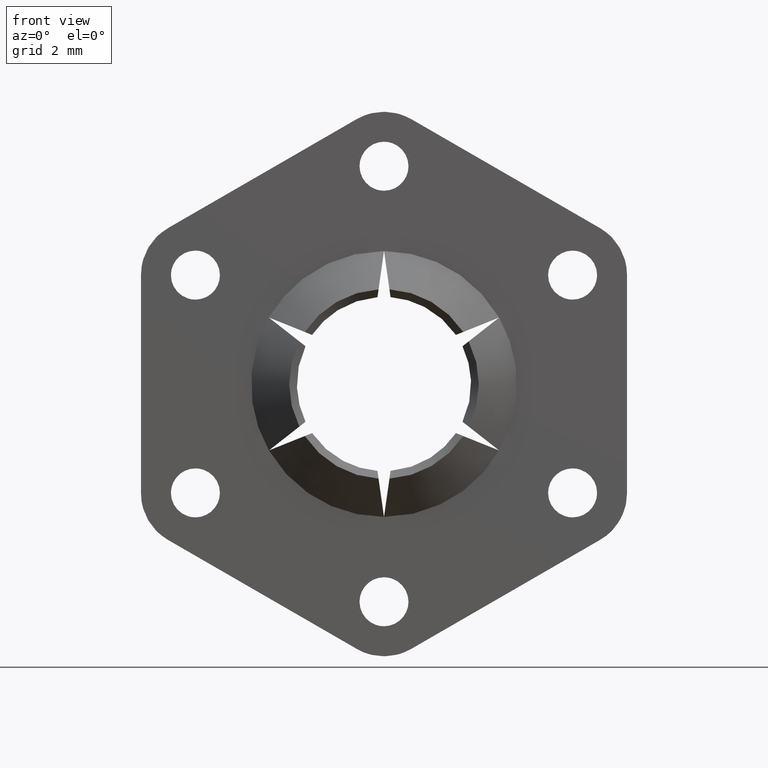
[diagram: clean part render]
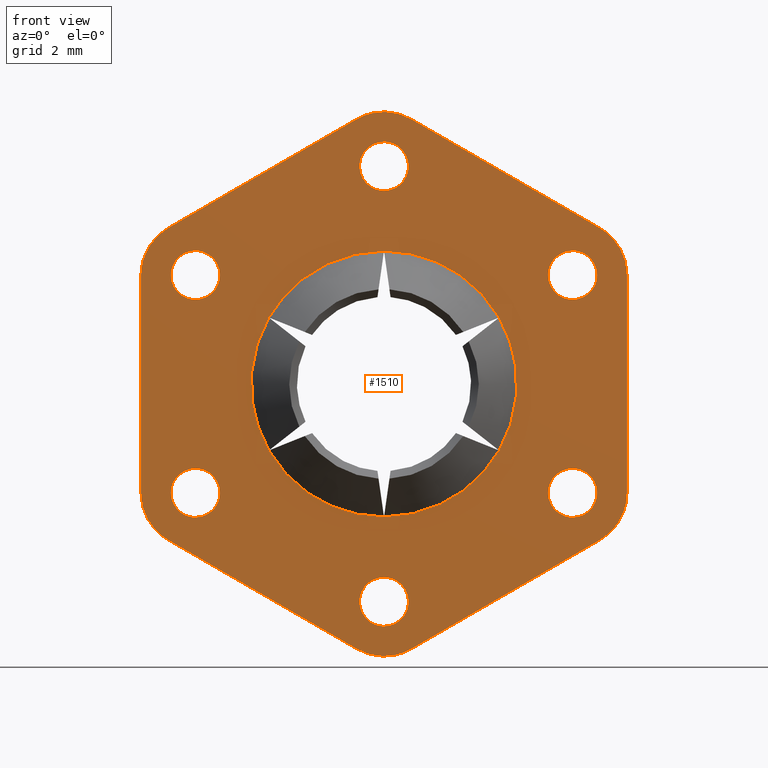
[diagram: same view with one face highlighted and labeled with its STEP entity id]
A machine part, front view. The second image highlights one B-rep face of the part: STEP entity #1510.
In plain terms, the highlighted face is a freeform B-spline surface patch.
Its self-contained STEP definition (entity closure, byte-faithful):
#23=CARTESIAN_POINT('',(7.828203230403200,-0.399999999999956,4.000000234346843));
#24=VERTEX_POINT('',#23);
#25=CARTESIAN_POINT('',(7.591752890230329,-0.400000000001252,4.608031211535138));
#26=VERTEX_POINT('',#25);
#27=CARTESIAN_POINT('',(7.828203230403200,-0.399999999999956,4.000000234346843));
#28=CARTESIAN_POINT('',(7.828235840829649,-0.400000000000142,4.086928223818205));
#29=CARTESIAN_POINT('',(7.805359732282255,-0.400000000000473,4.243378036142343));
#30=CARTESIAN_POINT('',(7.716940859367652,-0.400000000000915,4.449219121326247));
#31=CARTESIAN_POINT('',(7.636391994450767,-0.400000000001147,4.559329925393860));
#32=CARTESIAN_POINT('',(7.591752890230329,-0.400000000001252,4.608031211535138));
#33=B_SPLINE_CURVE_WITH_KNOTS('',3,(#27,#28,#29,#30,#31,#32),.UNSPECIFIED.,.F.,.U.,(4,1,1,4),(6.082273E-009,0.260778638803851,0.469399912592838,0.667591942475519),.UNSPECIFIED.);
#34=EDGE_CURVE('',#24,#26,#33,.T.);
#80=CARTESIAN_POINT('',(6.264653570576131,-0.400000000001252,3.391968788993053));
#81=VERTEX_POINT('',#80);
#87=CARTESIAN_POINT('',(6.928203230403231,-0.399999999999956,3.100000000264096));
#88=VERTEX_POINT('',#87);
#89=CARTESIAN_POINT('',(6.264653570576131,-0.400000000001252,3.391968788993053));
#90=CARTESIAN_POINT('',(6.322391064206475,-0.400000000001139,3.328911356677673));
#91=CARTESIAN_POINT('',(6.434764572732356,-0.400000000000919,3.236889830807550));
#92=CARTESIAN_POINT('',(6.660113207677694,-0.400000000000480,3.128886172311201));
#93=CARTESIAN_POINT('',(6.823264242185116,-0.400000000000161,3.099917698770171));
#94=CARTESIAN_POINT('',(6.928203230403231,-0.399999999999956,3.100000000264096));
#95=B_SPLINE_CURVE_WITH_KNOTS('',3,(#89,#90,#91,#92,#93,#94),.UNSPECIFIED.,.F.,.U.,(4,1,1,4),(8.272137E-009,0.256484804893804,0.431356854840709,0.746133515926049),.UNSPECIFIED.);
#96=EDGE_CURVE('',#81,#88,#95,.T.);
#98=CARTESIAN_POINT('',(6.928203230403231,-0.399999999999956,3.100000000264096));
#99=CARTESIAN_POINT('',(7.009200202013040,-0.399999999999956,3.099974343736401));
#100=CARTESIAN_POINT('',(7.171173352917253,-0.399999999999955,3.122011545478920));
#101=CARTESIAN_POINT('',(7.396557710784607,-0.399999999999959,3.218596526401623));
#102=CARTESIAN_POINT('',(7.573482655878818,-0.399999999999952,3.360221876556675));
#103=CARTESIAN_POINT('',(7.693217112072681,-0.399999999999958,3.515636021474627));
#104=CARTESIAN_POINT('',(7.771307147974531,-0.399999999999952,3.670765253618833));
#105=CARTESIAN_POINT('',(7.817668737169851,-0.399999999999970,3.830649972684197));
#106=CARTESIAN_POINT('',(7.828207806149309,-0.399999999999938,3.944776752768646));
#107=CARTESIAN_POINT('',(7.828203230403200,-0.399999999999956,4.000000234346843));
#108=B_SPLINE_CURVE_WITH_KNOTS('',3,(#98,#99,#100,#101,#102,#103,#104,#105,#106,#107),.UNSPECIFIED.,.F.,.U.,(4,1,1,1,1,1,1,4),(0.000000027766262,0.242984109180347,0.485968517856268,0.728946563611677,0.916709146844662,1.071339280978085,1.248054781481872,1.413725696523559),.UNSPECIFIED.);
#109=EDGE_CURVE('',#88,#24,#108,.T.);
#132=CARTESIAN_POINT('',(6.928203230403231,-0.399999999999956,4.900000000264095));
#133=VERTEX_POINT('',#132);
#134=CARTESIAN_POINT('',(7.591752890230329,-0.400000000001252,4.608031211535138));
#135=CARTESIAN_POINT('',(7.552375519065413,-0.400000000001174,4.651010542018086));
#136=CARTESIAN_POINT('',(7.453619721355334,-0.400000000000982,4.739728955891840));
#137=CARTESIAN_POINT('',(7.293161930640516,-0.400000000000669,4.829838507773413));
#138=CARTESIAN_POINT('',(7.110845350321276,-0.400000000000312,4.887102589741456));
#139=CARTESIAN_POINT('',(6.994267412320907,-0.400000000000085,4.900011206795461));
#140=CARTESIAN_POINT('',(6.928203230403231,-0.399999999999956,4.900000000264095));
#141=B_SPLINE_CURVE_WITH_KNOTS('',3,(#134,#135,#136,#137,#138,#139,#140),.UNSPECIFIED.,.F.,.U.,(4,1,1,1,4),(8.271728E-009,0.174874790363313,0.396380162385223,0.547941544190532,0.746133515926052),.UNSPECIFIED.);
#142=EDGE_CURVE('',#26,#133,#141,.T.);
#144=CARTESIAN_POINT('',(6.028203230403260,-0.399999999999956,3.999999766181345));
#145=VERTEX_POINT('',#144);
#146=CARTESIAN_POINT('',(6.928203230403231,-0.399999999999956,4.900000000264095));
#147=CARTESIAN_POINT('',(6.828793367875496,-0.399999999999956,4.900058111049996));
#148=CARTESIAN_POINT('',(6.666846583298053,-0.399999999999954,4.872883822530298));
#149=CARTESIAN_POINT('',(6.468856534640187,-0.399999999999958,4.780693777177579));
#150=CARTESIAN_POINT('',(6.313725357323717,-0.399999999999955,4.667128834109668));
#151=CARTESIAN_POINT('',(6.193336716690165,-0.399999999999954,4.530966411007047));
#152=CARTESIAN_POINT('',(6.094973663917792,-0.399999999999962,4.357348575796756));
#153=CARTESIAN_POINT('',(6.040087144640499,-0.399999999999953,4.184079914210815));
#154=CARTESIAN_POINT('',(6.028200528103735,-0.399999999999957,4.055222595539417));
#155=CARTESIAN_POINT('',(6.028203230403260,-0.399999999999956,3.999999766181345));
#156=B_SPLINE_CURVE_WITH_KNOTS('',3,(#146,#147,#148,#149,#150,#151,#152,#153,#154,#155),.UNSPECIFIED.,.F.,.U.,(4,1,1,1,1,1,1,4),(0.000000027770033,0.298207562280992,0.485968517858671,0.651640536808030,0.872533776876375,1.027159469077783,1.248054781482359,1.413725696523557),.UNSPECIFIED.);
#157=EDGE_CURVE('',#133,#145,#156,.T.);
#159=CARTESIAN_POINT('',(6.028203230403260,-0.399999999999956,3.999999766181345));
#160=CARTESIAN_POINT('',(6.028112599248770,-0.400000000000185,3.892196705355930));
#161=CARTESIAN_POINT('',(6.059827826178434,-0.400000000000556,3.718412429887935));
#162=CARTESIAN_POINT('',(6.161124670727883,-0.400000000000981,3.518753083599620));
#163=CARTESIAN_POINT('',(6.231766306353475,-0.400000000001175,3.427856974785998));
#164=CARTESIAN_POINT('',(6.264653570576131,-0.400000000001252,3.391968788993053));
#165=B_SPLINE_CURVE_WITH_KNOTS('',3,(#159,#160,#161,#162,#163,#164),.UNSPECIFIED.,.F.,.U.,(4,1,1,4),(6.081473E-009,0.323368925431791,0.521556500177104,0.667591942475517),.UNSPECIFIED.);
#166=EDGE_CURVE('',#145,#81,#165,.T.);
#226=CARTESIAN_POINT('',(0.900000000131150,-0.399999999999956,8.000000234340950));
#227=VERTEX_POINT('',#226);
#228=CARTESIAN_POINT('',(0.663549659958280,-0.400000000001252,8.608031211529243));
#229=VERTEX_POINT('',#228);
#230=CARTESIAN_POINT('',(0.900000000131150,-0.399999999999956,8.000000234340950));
#231=CARTESIAN_POINT('',(0.900018447722331,-0.400000000000112,8.073020266800565));
#232=CARTESIAN_POINT('',(0.885526734433153,-0.400000000000363,8.191226273737716));
#233=CARTESIAN_POINT('',(0.815610936082740,-0.400000000000815,8.403159511091854));
#234=CARTESIAN_POINT('',(0.734093863882163,-0.400000000001088,8.531171676873989));
#235=CARTESIAN_POINT('',(0.663549659958280,-0.400000000001252,8.608031211529243));
#236=B_SPLINE_CURVE_WITH_KNOTS('',3,(#230,#231,#232,#233,#234,#235),.UNSPECIFIED.,.F.,.U.,(4,1,1,4),(6.082606E-009,0.219054423721275,0.354656525952612,0.667591942475516),.UNSPECIFIED.);
#237=EDGE_CURVE('',#227,#229,#236,.T.);
#283=CARTESIAN_POINT('',(-0.663549659695919,-0.400000000001252,7.391968788987159));
#284=VERTEX_POINT('',#283);
#290=CARTESIAN_POINT('',(1.311804E-010,-0.399999999999956,7.100000000258200));
#291=VERTEX_POINT('',#290);
#292=CARTESIAN_POINT('',(-0.663549659695919,-0.400000000001252,7.391968788987159));
#293=CARTESIAN_POINT('',(-0.605812475506353,-0.400000000001139,7.328910333737909));
#294=CARTESIAN_POINT('',(-0.496474876521508,-0.400000000000926,7.239382513302176));
#295=CARTESIAN_POINT('',(-0.271969921440492,-0.400000000000487,7.129973225855730));
#296=CARTESIAN_POINT('',(-0.108827541360440,-0.400000000000169,7.099911870618442));
#297=CARTESIAN_POINT('',(1.311804E-010,-0.399999999999956,7.100000000258200));
#298=B_SPLINE_CURVE_WITH_KNOTS('',3,(#292,#293,#294,#295,#296,#297),.UNSPECIFIED.,.F.,.U.,(4,1,1,4),(8.272583E-009,0.256484804894009,0.419696351851841,0.746133515926048),.UNSPECIFIED.);
#299=EDGE_CURVE('',#284,#291,#298,.T.);
#301=CARTESIAN_POINT('',(1.311804E-010,-0.399999999999956,7.100000000258200));
#302=CARTESIAN_POINT('',(0.080996012322714,-0.399999999999956,7.099975049281044));
#303=CARTESIAN_POINT('',(0.242974818309033,-0.399999999999957,7.122008955398663));
#304=CARTESIAN_POINT('',(0.430781780634713,-0.399999999999955,7.202509696703173));
#305=CARTESIAN_POINT('',(0.603493532361702,-0.399999999999956,7.322564954549391));
#306=CARTESIAN_POINT('',(0.737734980733605,-0.399999999999960,7.467064753624746));
#307=CARTESIAN_POINT('',(0.838985603618571,-0.399999999999952,7.656555514775268));
#308=CARTESIAN_POINT('',(0.889464066262825,-0.399999999999962,7.830650374746121));
#309=CARTESIAN_POINT('',(0.900004938679817,-0.399999999999947,7.944776673103983));
#310=CARTESIAN_POINT('',(0.900000000131150,-0.399999999999956,8.000000234340950));
#311=B_SPLINE_CURVE_WITH_KNOTS('',3,(#301,#302,#303,#304,#305,#306,#307,#308,#309,#310),.UNSPECIFIED.,.F.,.U.,(4,1,1,1,1,1,1,4),(0.000000027770838,0.242984109183982,0.485968517859080,0.607466950547594,0.872533776876687,1.071339280979073,1.248054781482304,1.413725696523545),.UNSPECIFIED.);
#312=EDGE_CURVE('',#291,#227,#311,.T.);
#335=CARTESIAN_POINT('',(1.311804E-010,-0.399999999999956,8.900000000258199));
#336=VERTEX_POINT('',#335);
#337=CARTESIAN_POINT('',(0.663549659958280,-0.400000000001252,8.608031211529243));
#338=CARTESIAN_POINT('',(0.618926108762616,-0.400000000001165,8.656746746988873));
#339=CARTESIAN_POINT('',(0.527707299271428,-0.400000000000985,8.736552796733790));
#340=CARTESIAN_POINT('',(0.368383798663917,-0.400000000000677,8.827387497500263));
#341=CARTESIAN_POINT('',(0.194299369883961,-0.400000000000333,8.885819235810683));
#342=CARTESIAN_POINT('',(0.066064239196320,-0.400000000000088,8.900010376923799));
#343=CARTESIAN_POINT('',(1.311804E-010,-0.399999999999956,8.900000000258199));
#344=B_SPLINE_CURVE_WITH_KNOTS('',3,(#337,#338,#339,#340,#341,#342,#343),.UNSPECIFIED.,.F.,.U.,(4,1,1,1,4),(8.272743E-009,0.198191980013149,0.361412812576157,0.547941544190744,0.746133515926047),.UNSPECIFIED.);
#345=EDGE_CURVE('',#229,#336,#344,.T.);
#347=CARTESIAN_POINT('',(-0.899999999868789,-0.399999999999956,7.999999766175449));
#348=VERTEX_POINT('',#347);
#349=CARTESIAN_POINT('',(1.311804E-010,-0.399999999999956,8.900000000258199));
#350=CARTESIAN_POINT('',(-0.099410252276266,-0.399999999999956,8.900059071814132));
#351=CARTESIAN_POINT('',(-0.261354937998547,-0.399999999999958,8.872880305435579));
#352=CARTESIAN_POINT('',(-0.469420080120064,-0.399999999999955,8.776012729051466));
#353=CARTESIAN_POINT('',(-0.605016838883685,-0.399999999999956,8.672843776159761));
#354=CARTESIAN_POINT('',(-0.714780353702386,-0.399999999999949,8.553209783012042));
#355=CARTESIAN_POINT('',(-0.800259898774316,-0.399999999999966,8.423576720045290));
#356=CARTESIAN_POINT('',(-0.878133478280837,-0.399999999999952,8.235599407023075));
#357=CARTESIAN_POINT('',(-0.900036893071894,-0.399999999999954,8.088361045971118));
#358=CARTESIAN_POINT('',(-0.899999999868789,-0.399999999999956,7.999999766175449));
#359=B_SPLINE_CURVE_WITH_KNOTS('',3,(#349,#350,#351,#352,#353,#354,#355,#356,#357,#358),.UNSPECIFIED.,.F.,.U.,(4,1,1,1,1,1,1,4),(0.000000027770339,0.298207562281062,0.485968517858708,0.684779224785175,0.806258816291269,0.971934389374804,1.148654169148012,1.413725696523546),.UNSPECIFIED.);
#360=EDGE_CURVE('',#336,#348,#359,.T.);
#362=CARTESIAN_POINT('',(-0.899999999868789,-0.399999999999956,7.999999766175449));
#363=CARTESIAN_POINT('',(-0.900078707234762,-0.400000000000181,7.895674171048912));
#364=CARTESIAN_POINT('',(-0.874933418197950,-0.400000000000479,7.753173800110080));
#365=CARTESIAN_POINT('',(-0.785737083460057,-0.400000000000922,7.548798988817618));
#366=CARTESIAN_POINT('',(-0.717598484985652,-0.400000000001124,7.450915488266465));
#367=CARTESIAN_POINT('',(-0.663549659695919,-0.400000000001252,7.391968788987159));
#368=B_SPLINE_CURVE_WITH_KNOTS('',3,(#362,#363,#364,#365,#366,#367),.UNSPECIFIED.,.F.,.U.,(4,1,1,4),(6.081712E-009,0.312935422598092,0.427675604954582,0.667591942475510),.UNSPECIFIED.);
#369=EDGE_CURVE('',#348,#284,#368,.T.);
#430=CARTESIAN_POINT('',(-6.028203229834231,-0.399999999999956,4.000000232873148));
#431=VERTEX_POINT('',#430);
#432=CARTESIAN_POINT('',(-6.264653570007102,-0.400000000001252,4.608031210061443));
#433=VERTEX_POINT('',#432);
#434=CARTESIAN_POINT('',(-6.028203229834231,-0.399999999999956,4.000000232873148));
#435=CARTESIAN_POINT('',(-6.028140716539308,-0.400000000000162,4.097366643304847));
#436=CARTESIAN_POINT('',(-6.053853707167997,-0.400000000000498,4.253791100925239));
#437=CARTESIAN_POINT('',(-6.145669563365368,-0.400000000000930,4.457686433344783));
#438=CARTESIAN_POINT('',(-6.220011519966433,-0.400000000001147,4.559331706488349));
#439=CARTESIAN_POINT('',(-6.264653570007102,-0.400000000001252,4.608031210061443));
#440=B_SPLINE_CURVE_WITH_KNOTS('',3,(#434,#435,#436,#437,#438,#439),.UNSPECIFIED.,.F.,.U.,(4,1,1,4),(6.082226E-009,0.292073963777587,0.469399912592880,0.667591942475517),.UNSPECIFIED.);
#441=EDGE_CURVE('',#431,#433,#440,.T.);
#487=CARTESIAN_POINT('',(-7.591752889661299,-0.400000000001252,3.391968787519358));
#488=VERTEX_POINT('',#487);
#494=CARTESIAN_POINT('',(-6.928203229834200,-0.399999999999956,3.099999998790400));
#495=VERTEX_POINT('',#494);
#496=CARTESIAN_POINT('',(-7.591752889661299,-0.400000000001252,3.391968787519358));
#497=CARTESIAN_POINT('',(-7.534018986265552,-0.400000000001138,3.328904883061150));
#498=CARTESIAN_POINT('',(-7.433786731779319,-0.400000000000944,3.246847616061602));
#499=CARTESIAN_POINT('',(-7.263826748936194,-0.400000000000610,3.159907566424894));
#500=CARTESIAN_POINT('',(-7.106963371832581,-0.400000000000306,3.111742280989525));
#501=CARTESIAN_POINT('',(-6.986494705857829,-0.400000000000070,3.099993421883470));
#502=CARTESIAN_POINT('',(-6.928203229834200,-0.399999999999956,3.099999998790400));
#503=B_SPLINE_CURVE_WITH_KNOTS('',3,(#496,#497,#498,#499,#500,#501,#502),.UNSPECIFIED.,.F.,.U.,(4,1,1,1,4),(8.272716E-009,0.256484804894129,0.384720711625134,0.571258733839729,0.746133515926049),.UNSPECIFIED.);
#504=EDGE_CURVE('',#488,#495,#503,.T.);
#506=CARTESIAN_POINT('',(-6.928203229834200,-0.399999999999956,3.099999998790400));
#507=CARTESIAN_POINT('',(-6.828797170703969,-0.399999999999957,3.099947338350480));
#508=CARTESIAN_POINT('',(-6.648432129872255,-0.399999999999953,3.130187401636100));
#509=CARTESIAN_POINT('',(-6.429418494194698,-0.399999999999960,3.240448921541080));
#510=CARTESIAN_POINT('',(-6.282911704928019,-0.399999999999952,3.365296574483610));
#511=CARTESIAN_POINT('',(-6.171284534701733,-0.399999999999958,3.503018917198016));
#512=CARTESIAN_POINT('',(-6.096204006092340,-0.399999999999957,3.643486536078060));
#513=CARTESIAN_POINT('',(-6.041578342535855,-0.399999999999951,3.815930210158478));
#514=CARTESIAN_POINT('',(-6.028188897821956,-0.399999999999955,3.930050563779014));
#515=CARTESIAN_POINT('',(-6.028203229834231,-0.399999999999956,4.000000232873148));
#516=B_SPLINE_CURVE_WITH_KNOTS('',3,(#506,#507,#508,#509,#510,#511,#512,#513,#514,#515),.UNSPECIFIED.,.F.,.U.,(4,1,1,1,1,1,1,4),(0.000000027770395,0.298207562281248,0.541192824811446,0.728946563613698,0.872533776876694,1.071339280979178,1.203879411685332,1.413725696523545),.UNSPECIFIED.);
#517=EDGE_CURVE('',#495,#431,#516,.T.);
#540=CARTESIAN_POINT('',(-6.928203229834200,-0.399999999999956,4.899999998790400));
#541=VERTEX_POINT('',#540);
#542=CARTESIAN_POINT('',(-6.264653570007102,-0.400000000001252,4.608031210061443));
#543=CARTESIAN_POINT('',(-6.309276898446713,-0.400000000001164,4.656747165491968));
#544=CARTESIAN_POINT('',(-6.397553568318769,-0.400000000000994,4.733977578183637));
#545=CARTESIAN_POINT('',(-6.529195246523255,-0.400000000000735,4.810152877970594));
#546=CARTESIAN_POINT('',(-6.698952690494027,-0.400000000000404,4.878397907613540));
#547=CARTESIAN_POINT('',(-6.831040738636782,-0.400000000000145,4.900058406105060));
#548=CARTESIAN_POINT('',(-6.928203229834200,-0.399999999999956,4.899999998790400));
#549=B_SPLINE_CURVE_WITH_KNOTS('',3,(#542,#543,#544,#545,#546,#547,#548),.UNSPECIFIED.,.F.,.U.,(4,1,1,1,4),(8.272452E-009,0.198191980012906,0.349753361820453,0.454672459140196,0.746133515926052),.UNSPECIFIED.);
#550=EDGE_CURVE('',#433,#541,#549,.T.);
#552=CARTESIAN_POINT('',(-7.828203229834171,-0.399999999999956,3.999999764707650));
#553=VERTEX_POINT('',#552);
#554=CARTESIAN_POINT('',(-6.928203229834200,-0.399999999999956,4.899999998790400));
#555=CARTESIAN_POINT('',(-7.027614320416054,-0.399999999999957,4.900057686558056));
#556=CARTESIAN_POINT('',(-7.174834332604654,-0.399999999999956,4.875352519905449));
#557=CARTESIAN_POINT('',(-7.357650424685486,-0.399999999999957,4.795623096818295));
#558=CARTESIAN_POINT('',(-7.475344316268823,-0.399999999999956,4.719053151746222));
#559=CARTESIAN_POINT('',(-7.607333461136070,-0.399999999999958,4.600936229496129));
#560=CARTESIAN_POINT('',(-7.717152264970999,-0.399999999999951,4.450931140301199));
#561=CARTESIAN_POINT('',(-7.806334226250788,-0.399999999999964,4.235598638172008));
#562=CARTESIAN_POINT('',(-7.828240989330539,-0.399999999999946,4.088360613727382));
#563=CARTESIAN_POINT('',(-7.828203229834171,-0.399999999999956,3.999999764707650));
#564=B_SPLINE_CURVE_WITH_KNOTS('',3,(#554,#555,#556,#557,#558,#559,#560,#561,#562,#563),.UNSPECIFIED.,.F.,.U.,(4,1,1,1,1,1,1,4),(0.000000027766078,0.298207562277850,0.441791596325794,0.596416978887256,0.717899139419897,0.971934389373986,1.148654169147614,1.413725696523561),.UNSPECIFIED.);
#565=EDGE_CURVE('',#541,#553,#564,.T.);
#567=CARTESIAN_POINT('',(-7.828203229834171,-0.399999999999956,3.999999764707650));
#568=CARTESIAN_POINT('',(-7.828258761013622,-0.400000000000164,3.902636128400237));
#569=CARTESIAN_POINT('',(-7.800850018217809,-0.400000000000518,3.735773811224602));
#570=CARTESIAN_POINT('',(-7.705324472784628,-0.400000000000951,3.533132389037190));
#571=CARTESIAN_POINT('',(-7.629340251443206,-0.400000000001164,3.432982438397294));
#572=CARTESIAN_POINT('',(-7.591752889661299,-0.400000000001252,3.391968787519358));
#573=B_SPLINE_CURVE_WITH_KNOTS('',3,(#567,#568,#569,#570,#571,#572),.UNSPECIFIED.,.F.,.U.,(4,1,1,4),(6.082195E-009,0.292073963777521,0.500693955670127,0.667591942475517),.UNSPECIFIED.);
#574=EDGE_CURVE('',#553,#488,#573,.T.);
#635=CARTESIAN_POINT('',(-6.028203228969501,-0.399999999999956,-3.999999766205264));
#636=VERTEX_POINT('',#635);
#637=CARTESIAN_POINT('',(-6.264653569142372,-0.400000000001252,-3.391968789016969));
#638=VERTEX_POINT('',#637);
#639=CARTESIAN_POINT('',(-6.028203228969501,-0.399999999999956,-3.999999766205264));
#640=CARTESIAN_POINT('',(-6.028202448365039,-0.400000000000059,-3.951322114278062));
#641=CARTESIAN_POINT('',(-6.038368653152370,-0.400000000000327,-3.826146832414998));
#642=CARTESIAN_POINT('',(-6.102447578918877,-0.400000000000784,-3.611152931514515));
#643=CARTESIAN_POINT('',(-6.198835902622029,-0.400000000001099,-3.463714017598489));
#644=CARTESIAN_POINT('',(-6.264653569142372,-0.400000000001252,-3.391968789016969));
#645=B_SPLINE_CURVE_WITH_KNOTS('',3,(#639,#640,#641,#642,#643,#644),.UNSPECIFIED.,.F.,.U.,(4,1,1,4),(6.081517E-009,0.146035448378119,0.375517984773209,0.667591942475519),.UNSPECIFIED.);
#646=EDGE_CURVE('',#636,#638,#645,.T.);
#692=CARTESIAN_POINT('',(-7.591752888796568,-0.400000000001252,-4.608031211559053));
#693=VERTEX_POINT('',#692);
#699=CARTESIAN_POINT('',(-6.928203228969470,-0.399999999999956,-4.900000000288010));
#700=VERTEX_POINT('',#699);
#701=CARTESIAN_POINT('',(-7.591752888796568,-0.400000000001252,-4.608031211559053));
#702=CARTESIAN_POINT('',(-7.528768903758529,-0.400000000001129,-4.676823328131142));
#703=CARTESIAN_POINT('',(-7.390399343050928,-0.400000000000858,-4.787184511653335));
#704=CARTESIAN_POINT('',(-7.157477553193541,-0.400000000000404,-4.880776957162901));
#705=CARTESIAN_POINT('',(-7.002039915728551,-0.400000000000100,-4.900015926049496));
#706=CARTESIAN_POINT('',(-6.928203228969470,-0.399999999999956,-4.900000000288010));
#707=B_SPLINE_CURVE_WITH_KNOTS('',3,(#701,#702,#703,#704,#705,#706),.UNSPECIFIED.,.F.,.U.,(4,1,1,4),(8.272081E-009,0.279800207192641,0.524624751559541,0.746133515926053),.UNSPECIFIED.);
#708=EDGE_CURVE('',#693,#700,#707,.T.);
#710=CARTESIAN_POINT('',(-6.928203228969470,-0.399999999999956,-4.900000000288010));
#711=CARTESIAN_POINT('',(-6.828796133449349,-0.399999999999956,-4.900059241437144));
#712=CARTESIAN_POINT('',(-6.648433469342184,-0.399999999999955,-4.869804401548783));
#713=CARTESIAN_POINT('',(-6.439370346822651,-0.399999999999958,-4.764562755811157));
#714=CARTESIAN_POINT('',(-6.305136501135785,-0.399999999999954,-4.654359528506936));
#715=CARTESIAN_POINT('',(-6.196830636797873,-0.399999999999958,-4.533403360469902));
#716=CARTESIAN_POINT('',(-6.114060394195135,-0.399999999999956,-4.397202821919962));
#717=CARTESIAN_POINT('',(-6.045722680002705,-0.399999999999956,-4.209834531143814));
#718=CARTESIAN_POINT('',(-6.028173238127176,-0.399999999999953,-4.080997066211022));
#719=CARTESIAN_POINT('',(-6.028203228969501,-0.399999999999956,-3.999999766205264));
#720=B_SPLINE_CURVE_WITH_KNOTS('',3,(#710,#711,#712,#713,#714,#715,#716,#717,#718,#719),.UNSPECIFIED.,.F.,.U.,(4,1,1,1,1,1,1,4),(0.000000027768896,0.298207562279927,0.541192824810404,0.695826477561995,0.817309461464141,1.027159469077636,1.170742960576889,1.413725696523555),.UNSPECIFIED.);
#721=EDGE_CURVE('',#700,#636,#720,.T.);
#744=CARTESIAN_POINT('',(-6.928203228969470,-0.399999999999956,-3.100000000288011));
#745=VERTEX_POINT('',#744);
#746=CARTESIAN_POINT('',(-6.264653569142372,-0.400000000001252,-3.391968789016969));
#747=CARTESIAN_POINT('',(-6.322390183319671,-0.400000000001140,-3.328910425583682));
#748=CARTESIAN_POINT('',(-6.449944386261482,-0.400000000000890,-3.224439790406773));
#749=CARTESIAN_POINT('',(-6.679508407967042,-0.400000000000442,-3.123433515364702));
#750=CARTESIAN_POINT('',(-6.842705095341892,-0.400000000000123,-3.099964819048696));
#751=CARTESIAN_POINT('',(-6.928203228969470,-0.399999999999956,-3.100000000288011));
#752=B_SPLINE_CURVE_WITH_KNOTS('',3,(#746,#747,#748,#749,#750,#751),.UNSPECIFIED.,.F.,.U.,(4,1,1,4),(8.272547E-009,0.256484804893981,0.489648719309966,0.746133515926049),.UNSPECIFIED.);
#753=EDGE_CURVE('',#638,#745,#752,.T.);
#755=CARTESIAN_POINT('',(-7.828203228969439,-0.399999999999956,-4.000000234370758));
#756=VERTEX_POINT('',#755);
#757=CARTESIAN_POINT('',(-6.928203228969470,-0.399999999999956,-3.100000000288011));
#758=CARTESIAN_POINT('',(-7.027613084021587,-0.399999999999956,-3.099939910975678));
#759=CARTESIAN_POINT('',(-7.189560447901200,-0.399999999999956,-3.127117277655510));
#760=CARTESIAN_POINT('',(-7.374125698387378,-0.399999999999957,-3.213060905865214));
#761=CARTESIAN_POINT('',(-7.528663284007085,-0.399999999999954,-3.320455570265789));
#762=CARTESIAN_POINT('',(-7.663674081297114,-0.399999999999962,-3.464008472079599));
#763=CARTESIAN_POINT('',(-7.766160563122859,-0.399999999999947,-3.652998856900621));
#764=CARTESIAN_POINT('',(-7.817667519038240,-0.399999999999972,-3.830650414235702));
#765=CARTESIAN_POINT('',(-7.828207822341348,-0.399999999999939,-3.944776795261832));
#766=CARTESIAN_POINT('',(-7.828203228969439,-0.399999999999956,-4.000000234370758));
#767=B_SPLINE_CURVE_WITH_KNOTS('',3,(#757,#758,#759,#760,#761,#762,#763,#764,#765,#766),.UNSPECIFIED.,.F.,.U.,(4,1,1,1,1,1,1,4),(0.000000027765409,0.298207562277386,0.485968517855748,0.607466950544777,0.861483921733217,1.071339280978080,1.248054781481867,1.413725696523559),.UNSPECIFIED.);
#768=EDGE_CURVE('',#745,#756,#767,.T.);
#770=CARTESIAN_POINT('',(-7.828203228969439,-0.399999999999956,-4.000000234370758));
#771=CARTESIAN_POINT('',(-7.828210511167776,-0.400000000000096,-4.066063641529207));
#772=CARTESIAN_POINT('',(-7.812451619258919,-0.400000000000401,-4.208622431003955));
#773=CARTESIAN_POINT('',(-7.736007027272105,-0.400000000000850,-4.419537526029604));
#774=CARTESIAN_POINT('',(-7.645801229133316,-0.400000000001125,-4.549085421023483));
#775=CARTESIAN_POINT('',(-7.591752888796568,-0.400000000001252,-4.608031211559053));
#776=B_SPLINE_CURVE_WITH_KNOTS('',3,(#770,#771,#772,#773,#774,#775),.UNSPECIFIED.,.F.,.U.,(4,1,1,4),(6.081407E-009,0.198192035959073,0.427675604954601,0.667591942475518),.UNSPECIFIED.);
#777=EDGE_CURVE('',#756,#693,#776,.T.);
#838=CARTESIAN_POINT('',(0.900000001302650,-0.399999999999956,-7.999999766199524));
#839=VERTEX_POINT('',#838);
#840=CARTESIAN_POINT('',(0.663549661129779,-0.400000000001252,-7.391968789011228));
#841=VERTEX_POINT('',#840);
#842=CARTESIAN_POINT('',(0.900000001302650,-0.399999999999956,-7.999999766199524));
#843=CARTESIAN_POINT('',(0.900015470933136,-0.400000000000111,-7.926981157562511));
#844=CARTESIAN_POINT('',(0.883832278310931,-0.400000000000393,-7.794862486111764));
#845=CARTESIAN_POINT('',(0.808859625084362,-0.400000000000842,-7.584191852159501));
#846=CARTESIAN_POINT('',(0.724663418432044,-0.400000000001109,-7.458594530389664));
#847=CARTESIAN_POINT('',(0.663549661129779,-0.400000000001252,-7.391968789011228));
#848=B_SPLINE_CURVE_WITH_KNOTS('',3,(#842,#843,#844,#845,#846,#847),.UNSPECIFIED.,.F.,.U.,(4,1,1,4),(6.081844E-009,0.219054423720982,0.396380126381482,0.667591942475520),.UNSPECIFIED.);
#849=EDGE_CURVE('',#839,#841,#848,.T.);
#897=CARTESIAN_POINT('',(-0.663549658524418,-0.400000000001252,-8.608031211553312));
#898=VERTEX_POINT('',#897);
#904=CARTESIAN_POINT('',(1.302681E-009,-0.399999999999956,-8.900000000282271));
#905=VERTEX_POINT('',#904);
#906=CARTESIAN_POINT('',(-0.663549658524418,-0.400000000001252,-8.608031211553312));
#907=CARTESIAN_POINT('',(-0.592709769922590,-0.400000000001113,-8.685452334942177));
#908=CARTESIAN_POINT('',(-0.467402147573900,-0.400000000000868,-8.781372294669327));
#909=CARTESIAN_POINT('',(-0.237023821753087,-0.400000000000419,-8.877446417748566));
#910=CARTESIAN_POINT('',(-0.093271439152295,-0.400000000000137,-8.900040711908304));
#911=CARTESIAN_POINT('',(1.302681E-009,-0.399999999999956,-8.900000000282271));
#912=B_SPLINE_CURVE_WITH_KNOTS('',3,(#906,#907,#908,#909,#910,#911),.UNSPECIFIED.,.F.,.U.,(4,1,1,4),(8.272306E-009,0.314776669364244,0.466333317009769,0.746133515926055),.UNSPECIFIED.);
#913=EDGE_CURVE('',#898,#905,#912,.T.);
#915=CARTESIAN_POINT('',(1.302681E-009,-0.399999999999956,-8.900000000282271));
#916=CARTESIAN_POINT('',(0.095725474102792,-0.399999999999956,-8.900052488932646));
#917=CARTESIAN_POINT('',(0.261364966643940,-0.399999999999958,-8.873313302387489));
#918=CARTESIAN_POINT('',(0.462986652564820,-0.399999999999954,-8.779445589805437));
#919=CARTESIAN_POINT('',(0.601909326589010,-0.399999999999957,-8.675068351904260));
#920=CARTESIAN_POINT('',(0.733513539657391,-0.399999999999955,-8.535187182235163));
#921=CARTESIAN_POINT('',(0.832824344381052,-0.399999999999953,-8.364779596138014));
#922=CARTESIAN_POINT('',(0.889462265776586,-0.399999999999962,-8.169348046743940));
#923=CARTESIAN_POINT('',(0.900004510954572,-0.399999999999947,-8.055223219528699));
#924=CARTESIAN_POINT('',(0.900000001302650,-0.399999999999956,-7.999999766199524));
#925=B_SPLINE_CURVE_WITH_KNOTS('',3,(#915,#916,#917,#918,#919,#920,#921,#922,#923,#924),.UNSPECIFIED.,.F.,.U.,(4,1,1,1,1,1,1,4),(0.000000027770935,0.287161475323200,0.497016785066831,0.662691817198447,0.806258816291584,1.071339280979024,1.248054781482316,1.413725696523545),.UNSPECIFIED.);
#926=EDGE_CURVE('',#905,#839,#925,.T.);
#949=CARTESIAN_POINT('',(1.302681E-009,-0.399999999999956,-7.100000000282271));
#950=VERTEX_POINT('',#949);
#951=CARTESIAN_POINT('',(0.663549661129779,-0.400000000001252,-7.391968789011228));
#952=CARTESIAN_POINT('',(0.613680513941900,-0.400000000001154,-7.337515596879637));
#953=CARTESIAN_POINT('',(0.524268545190467,-0.400000000000980,-7.261334858578014));
#954=CARTESIAN_POINT('',(0.374799693845692,-0.400000000000688,-7.177400452812914));
#955=CARTESIAN_POINT('',(0.209837668968095,-0.400000000000367,-7.117227920759087));
#956=CARTESIAN_POINT('',(0.077724579498331,-0.400000000000106,-7.099974872809451));
#957=CARTESIAN_POINT('',(1.302681E-009,-0.399999999999956,-7.100000000282271));
#958=B_SPLINE_CURVE_WITH_KNOTS('',3,(#951,#952,#953,#954,#955,#956,#957),.UNSPECIFIED.,.F.,.U.,(4,1,1,1,4),(8.272550E-009,0.221508772642262,0.349753361820472,0.512965527198098,0.746133515926046),.UNSPECIFIED.);
#959=EDGE_CURVE('',#841,#950,#958,.T.);
#961=CARTESIAN_POINT('',(-0.899999998697289,-0.399999999999956,-8.000000234365018));
#962=VERTEX_POINT('',#961);
#963=CARTESIAN_POINT('',(1.302681E-009,-0.399999999999956,-7.100000000282271));
#964=CARTESIAN_POINT('',(-0.069949892536217,-0.399999999999956,-7.099984629215238));
#965=CARTESIAN_POINT('',(-0.195116126703187,-0.399999999999957,-7.114668908623637));
#966=CARTESIAN_POINT('',(-0.349264362973654,-0.399999999999955,-7.166645714986903));
#967=CARTESIAN_POINT('',(-0.480227266226363,-0.399999999999958,-7.234596518544370));
#968=CARTESIAN_POINT('',(-0.599553293591927,-0.399999999999953,-7.321956759055339));
#969=CARTESIAN_POINT('',(-0.705927104128433,-0.399999999999960,-7.435077882783370));
#970=CARTESIAN_POINT('',(-0.806442833731895,-0.399999999999949,-7.585470655932593));
#971=CARTESIAN_POINT('',(-0.880935621812036,-0.399999999999965,-7.771743062395077));
#972=CARTESIAN_POINT('',(-0.900014039681672,-0.399999999999951,-7.926369548213888));
#973=CARTESIAN_POINT('',(-0.899999998697289,-0.399999999999956,-8.000000234365018));
#974=B_SPLINE_CURVE_WITH_KNOTS('',3,(#963,#964,#965,#966,#967,#968,#969,#970,#971,#972,#973),.UNSPECIFIED.,.F.,.U.,(4,1,1,1,1,1,1,1,4),(0.000000027768313,0.209847310141810,0.375521199500064,0.485968517857692,0.651640536807354,0.817309461464125,0.949845597966892,1.192831770812354,1.413725696523545),.UNSPECIFIED.);
#975=EDGE_CURVE('',#950,#962,#974,.T.);
#977=CARTESIAN_POINT('',(-0.899999998697289,-0.399999999999956,-8.000000234365018));
#978=CARTESIAN_POINT('',(-0.900084253444763,-0.400000000000186,-8.107804181795686));
#979=CARTESIAN_POINT('',(-0.871549921803326,-0.400000000000519,-8.264204549168330));
#980=CARTESIAN_POINT('',(-0.776332112080272,-0.400000000000949,-8.466155693059209));
#981=CARTESIAN_POINT('',(-0.708191024085277,-0.400000000001149,-8.559331164398030));
#982=CARTESIAN_POINT('',(-0.663549658524418,-0.400000000001252,-8.608031211553312));
#983=B_SPLINE_CURVE_WITH_KNOTS('',3,(#977,#978,#979,#980,#981,#982),.UNSPECIFIED.,.F.,.U.,(4,1,1,4),(6.081539E-009,0.323368925431732,0.469399912592669,0.667591942475521),.UNSPECIFIED.);
#984=EDGE_CURVE('',#962,#898,#983,.T.);
#1045=CARTESIAN_POINT('',(7.828203231574711,-0.399999999999956,-3.999999766205364));
#1046=VERTEX_POINT('',#1045);
#1047=CARTESIAN_POINT('',(7.591752891401839,-0.400000000001252,-3.391968789017068));
#1048=VERTEX_POINT('',#1047);
#1049=CARTESIAN_POINT('',(7.828203231574711,-0.399999999999956,-3.999999766205364));
#1050=CARTESIAN_POINT('',(7.828219323216608,-0.400000000000111,-3.926980437709255));
#1051=CARTESIAN_POINT('',(7.811608961089126,-0.400000000000401,-3.791386266962156));
#1052=CARTESIAN_POINT('',(7.735376520502254,-0.400000000000847,-3.581027248351813));
#1053=CARTESIAN_POINT('',(7.650508402918324,-0.400000000001116,-3.456035997226239));
#1054=CARTESIAN_POINT('',(7.591752891401839,-0.400000000001252,-3.391968789017068));
#1055=B_SPLINE_CURVE_WITH_KNOTS('',3,(#1049,#1050,#1051,#1052,#1053,#1054),.UNSPECIFIED.,.F.,.U.,(4,1,1,4),(6.081832E-009,0.219054423720993,0.406813309756053,0.667591942475522),.UNSPECIFIED.);
#1056=EDGE_CURVE('',#1046,#1048,#1055,.T.);
#1103=CARTESIAN_POINT('',(6.264653571747642,-0.400000000001252,-4.608031211559153));
#1104=VERTEX_POINT('',#1103);
#1110=CARTESIAN_POINT('',(6.928203231574741,-0.399999999999956,-4.900000000288109));
#1111=VERTEX_POINT('',#1110);
#1112=CARTESIAN_POINT('',(6.264653571747642,-0.400000000001252,-4.608031211559153));
#1113=CARTESIAN_POINT('',(6.317145585562986,-0.400000000001148,-4.665353375925139));
#1114=CARTESIAN_POINT('',(6.401126824801846,-0.400000000000987,-4.735965271459055));
#1115=CARTESIAN_POINT('',(6.560010554817771,-0.400000000000673,-4.826556685674613));
#1116=CARTESIAN_POINT('',(6.722241703635781,-0.400000000000360,-4.884536309282144));
#1117=CARTESIAN_POINT('',(6.862139775377173,-0.400000000000084,-4.900009770036512));
#1118=CARTESIAN_POINT('',(6.928203231574741,-0.399999999999956,-4.900000000288109));
#1119=B_SPLINE_CURVE_WITH_KNOTS('',3,(#1112,#1113,#1114,#1115,#1116,#1117,#1118),.UNSPECIFIED.,.F.,.U.,(4,1,1,1,4),(8.273034E-009,0.233167997005897,0.326437172351763,0.547941544190677,0.746133515926052),.UNSPECIFIED.);
#1120=EDGE_CURVE('',#1104,#1111,#1119,.T.);
#1122=CARTESIAN_POINT('',(6.928203231574741,-0.399999999999956,-4.900000000288109));
#1123=CARTESIAN_POINT('',(7.009199333124351,-0.399999999999957,-4.900025429571702));
#1124=CARTESIAN_POINT('',(7.171177854264574,-0.399999999999955,-4.877990469888045));
#1125=CARTESIAN_POINT('',(7.358984787083385,-0.399999999999956,-4.797490320563211));
#1126=CARTESIAN_POINT('',(7.531697776169635,-0.399999999999954,-4.677435830627978));
#1127=CARTESIAN_POINT('',(7.665936730006477,-0.399999999999965,-4.532933838703481));
#1128=CARTESIAN_POINT('',(7.767189041715266,-0.399999999999942,-4.343444888686316));
#1129=CARTESIAN_POINT('',(7.817667875621506,-0.399999999999979,-4.169349777500757));
#1130=CARTESIAN_POINT('',(7.828207805941400,-0.399999999999932,-4.055223163494264));
#1131=CARTESIAN_POINT('',(7.828203231574711,-0.399999999999956,-3.999999766205364));
#1132=B_SPLINE_CURVE_WITH_KNOTS('',3,(#1122,#1123,#1124,#1125,#1126,#1127,#1128,#1129,#1130,#1131),.UNSPECIFIED.,.F.,.U.,(4,1,1,1,1,1,1,4),(0.000000027766750,0.242984109180767,0.485968517856555,0.607466950545397,0.872533776875277,1.071339280978234,1.248054781481939,1.413725696523560),.UNSPECIFIED.);
#1133=EDGE_CURVE('',#1111,#1046,#1132,.T.);
#1156=CARTESIAN_POINT('',(6.928203231574741,-0.399999999999956,-3.100000000288110));
#1157=VERTEX_POINT('',#1156);
#1158=CARTESIAN_POINT('',(7.591752891401839,-0.400000000001252,-3.391968789017068));
#1159=CARTESIAN_POINT('',(7.539259194140401,-0.400000000001150,-3.334649015443323));
#1160=CARTESIAN_POINT('',(7.449283212109847,-0.400000000000972,-3.258987651424915));
#1161=CARTESIAN_POINT('',(7.289113850115136,-0.400000000000661,-3.170403472798122));
#1162=CARTESIAN_POINT('',(7.126389838473375,-0.400000000000344,-3.114612208279907));
#1163=CARTESIAN_POINT('',(6.994267470105940,-0.400000000000085,-3.099988080966998));
#1164=CARTESIAN_POINT('',(6.928203231574741,-0.399999999999956,-3.100000000288110));
#1165=B_SPLINE_CURVE_WITH_KNOTS('',3,(#1158,#1159,#1160,#1161,#1162,#1163,#1164),.UNSPECIFIED.,.F.,.U.,(4,1,1,1,4),(8.272798E-009,0.233167997005773,0.349753361820569,0.547941544190617,0.746133515926049),.UNSPECIFIED.);
#1166=EDGE_CURVE('',#1048,#1157,#1165,.T.);
#1168=CARTESIAN_POINT('',(6.028203231574770,-0.399999999999956,-4.000000234370857));
#1169=VERTEX_POINT('',#1168);
#1170=CARTESIAN_POINT('',(6.928203231574741,-0.399999999999956,-3.100000000288110));
#1171=CARTESIAN_POINT('',(6.876662916187827,-0.399999999999957,-3.099996970114630));
#1172=CARTESIAN_POINT('',(6.762534186828564,-0.399999999999955,-3.109824430732668));
#1173=CARTESIAN_POINT('',(6.602269725456376,-0.399999999999957,-3.155233063343089));
#1174=CARTESIAN_POINT('',(6.450440671255731,-0.399999999999956,-3.231665302771613));
#1175=CARTESIAN_POINT('',(6.308542569692778,-0.399999999999954,-3.338245294792330));
#1176=CARTESIAN_POINT('',(6.191512053907285,-0.399999999999958,-3.472250981246648));
#1177=CARTESIAN_POINT('',(6.094976772002398,-0.399999999999949,-3.642653467058632));
#1178=CARTESIAN_POINT('',(6.040085673314557,-0.399999999999969,-3.815918971147920));
#1179=CARTESIAN_POINT('',(6.028200899870651,-0.399999999999940,-3.944777617507023));
#1180=CARTESIAN_POINT('',(6.028203231574770,-0.399999999999956,-4.000000234370857));
#1181=B_SPLINE_CURVE_WITH_KNOTS('',3,(#1170,#1171,#1172,#1173,#1174,#1175,#1176,#1177,#1178,#1179,#1180),.UNSPECIFIED.,.F.,.U.,(4,1,1,1,1,1,1,1,4),(0.000000027772181,0.154622342062099,0.342386569482560,0.497016785067917,0.662691817199409,0.872533776877386,1.027159469078486,1.248054781482611,1.413725696523533),.UNSPECIFIED.);
#1182=EDGE_CURVE('',#1157,#1169,#1181,.T.);
#1184=CARTESIAN_POINT('',(6.028203231574770,-0.399999999999956,-4.000000234370857));
#1185=CARTESIAN_POINT('',(6.028161443461726,-0.400000000000143,-4.086932044137319));
#1186=CARTESIAN_POINT('',(6.046489033078791,-0.400000000000407,-4.212078377424688));
#1187=CARTESIAN_POINT('',(6.123675313733006,-0.400000000000855,-4.421281680906166));
#1188=CARTESIAN_POINT('',(6.198826941811464,-0.400000000001098,-4.536286147349407));
#1189=CARTESIAN_POINT('',(6.264653571747642,-0.400000000001252,-4.608031211559153));
#1190=B_SPLINE_CURVE_WITH_KNOTS('',3,(#1184,#1185,#1186,#1187,#1188,#1189),.UNSPECIFIED.,.F.,.U.,(4,1,1,4),(6.081219E-009,0.260778638803353,0.375517984773154,0.667591942475520),.UNSPECIFIED.);
#1191=EDGE_CURVE('',#1169,#1104,#1190,.T.);
#1235=CARTESIAN_POINT('',(-9.820130699719195,-0.400000000000019,-10.998999486772920));
#1236=CARTESIAN_POINT('',(-9.820130699719195,-0.400000000000019,10.998994480753900));
#1237=CARTESIAN_POINT('',(9.820131175861167,-0.400000000000019,-10.998999486772920));
#1238=CARTESIAN_POINT('',(9.820131175861167,-0.400000000000019,10.998994480753900));
#1239=B_SPLINE_SURFACE_WITH_KNOTS('',1,1,((#1235,#1237),(#1236,#1238)),.UNSPECIFIED.,.F.,.F.,.U.,(2,2),(2,2),(0.0,21.997993967526821),(0.0,19.640261875580361),.UNSPECIFIED.);
#1240=CARTESIAN_POINT('',(-1.000000000952954,-0.400000000000019,-9.732050806861320));
#1241=VERTEX_POINT('',#1240);
#1242=CARTESIAN_POINT('',(-7.928203231906480,-0.400000000000019,-5.732050806927210));
#1243=VERTEX_POINT('',#1242);
#1244=CARTESIAN_POINT('',(-1.000000000952954,-0.400000000000019,-9.732050806861320));
#1245=CARTESIAN_POINT('',(-7.928203231906480,-0.400000000000019,-5.732050806927210));
#1246=QUASI_UNIFORM_CURVE('',1,(#1244,#1245),.UNSPECIFIED.,.F.,.U.);
#1247=EDGE_CURVE('',#1241,#1243,#1246,.T.);
#1248=ORIENTED_EDGE('',*,*,#1247,.F.);
#1249=CARTESIAN_POINT('',(0.999999998148503,-0.400000000000019,-9.732050806861329));
#1250=VERTEX_POINT('',#1249);
#1251=CARTESIAN_POINT('',(-1.000000000952954,-0.400000000000019,-9.732050806861320));
#1252=CARTESIAN_POINT('',(-0.886645453149394,-0.400000000000028,-9.797517108309327));
#1253=CARTESIAN_POINT('',(-0.691947377468873,-0.400000000000039,-9.885699176533350));
#1254=CARTESIAN_POINT('',(-0.375600870282139,-0.400000000000051,-9.971855372054655));
#1255=CARTESIAN_POINT('',(-0.076631273121952,-0.400000000000053,-10.007493218602850));
#1256=CARTESIAN_POINT('',(0.229413725443297,-0.400000000000054,-9.993702000045772));
#1257=CARTESIAN_POINT('',(0.594537787913999,-0.400000000000037,-9.924195519645068));
#1258=CARTESIAN_POINT('',(0.844150370040823,-0.400000000000037,-9.822102082086285));
#1259=CARTESIAN_POINT('',(0.999999998148503,-0.400000000000019,-9.732050806861329));
#1260=B_SPLINE_CURVE_WITH_KNOTS('',3,(#1251,#1252,#1253,#1254,#1255,#1256,#1257,#1258,#1259),.UNSPECIFIED.,.F.,.U.,(4,1,1,1,1,1,4),(8.348688E-009,0.392699709138065,0.638138376775742,0.981755589393058,1.292637394918461,1.554438031788189,2.094400942255189),.UNSPECIFIED.);
#1261=EDGE_CURVE('',#1241,#1250,#1260,.T.);
#1262=ORIENTED_EDGE('',*,*,#1261,.T.);
#1263=CARTESIAN_POINT('',(7.928203229102291,-0.400000000000019,-5.732050806927190));
#1264=VERTEX_POINT('',#1263);
#1265=CARTESIAN_POINT('',(7.928203229102291,-0.400000000000019,-5.732050806927190));
#1266=CARTESIAN_POINT('',(0.999999998148503,-0.400000000000019,-9.732050806861329));
#1267=QUASI_UNIFORM_CURVE('',1,(#1265,#1266),.UNSPECIFIED.,.F.,.U.);
#1268=EDGE_CURVE('',#1264,#1250,#1267,.T.);
#1269=ORIENTED_EDGE('',*,*,#1268,.F.);
#1270=CARTESIAN_POINT('',(8.928203228824559,-0.400000000000019,-3.999999999938405));
#1271=VERTEX_POINT('',#1270);
#1272=CARTESIAN_POINT('',(7.928203229102291,-0.400000000000019,-5.732050806927190));
#1273=CARTESIAN_POINT('',(8.013224161744340,-0.400000000000025,-5.682965188910758));
#1274=CARTESIAN_POINT('',(8.212215894780441,-0.400000000000037,-5.547654108890872));
#1275=CARTESIAN_POINT('',(8.466372423175356,-0.400000000000057,-5.297627359503681));
#1276=CARTESIAN_POINT('',(8.673860752971356,-0.400000000000048,-4.995172949491395));
#1277=CARTESIAN_POINT('',(8.816415258989256,-0.400000000000056,-4.687282509789070));
#1278=CARTESIAN_POINT('',(8.907033036340247,-0.400000000000042,-4.354517024453496));
#1279=CARTESIAN_POINT('',(8.928215583439169,-0.400000000000024,-4.119992051981008));
#1280=CARTESIAN_POINT('',(8.928203228824559,-0.400000000000019,-3.999999999938405));
#1281=B_SPLINE_CURVE_WITH_KNOTS('',3,(#1272,#1273,#1274,#1275,#1276,#1277,#1278,#1279,#1280),.UNSPECIFIED.,.F.,.U.,(4,1,1,1,1,1,4),(8.347274E-009,0.294522413829532,0.719951225483516,1.063557275671242,1.390810964040627,1.734426428388511,2.094400942552310),.UNSPECIFIED.);
#1282=EDGE_CURVE('',#1264,#1271,#1281,.T.);
#1283=ORIENTED_EDGE('',*,*,#1282,.T.);
#1284=CARTESIAN_POINT('',(8.928203228824559,-0.400000000000019,4.000000000709545));
#1285=VERTEX_POINT('',#1284);
#1286=CARTESIAN_POINT('',(8.928203228824559,-0.400000000000019,4.000000000709545));
#1287=CARTESIAN_POINT('',(8.928203228824559,-0.400000000000019,-3.999999999938405));
#1288=QUASI_UNIFORM_CURVE('',1,(#1286,#1287),.UNSPECIFIED.,.F.,.U.);
#1289=EDGE_CURVE('',#1285,#1271,#1288,.T.);
#1290=ORIENTED_EDGE('',*,*,#1289,.F.);
#1291=CARTESIAN_POINT('',(7.928203229102302,-0.400000000000019,5.732050807698330));
#1292=VERTEX_POINT('',#1291);
#1293=CARTESIAN_POINT('',(8.928203228824559,-0.400000000000019,4.000000000709545));
#1294=CARTESIAN_POINT('',(8.928221983181086,-0.400000000000026,4.130901156270456));
#1295=CARTESIAN_POINT('',(8.907240074167399,-0.400000000000040,4.343605558197798));
#1296=CARTESIAN_POINT('',(8.825072423072419,-0.400000000000050,4.655362159995165));
#1297=CARTESIAN_POINT('',(8.718299603047441,-0.400000000000054,4.907290076801372));
#1298=CARTESIAN_POINT('',(8.574044043631236,-0.400000000000057,5.145735930598922));
#1299=CARTESIAN_POINT('',(8.404152552355354,-0.400000000000042,5.359806169515783));
#1300=CARTESIAN_POINT('',(8.189366588041249,-0.400000000000041,5.562628275448734));
#1301=CARTESIAN_POINT('',(8.017951083235126,-0.400000000000021,5.680241809221205));
#1302=CARTESIAN_POINT('',(7.928203229102302,-0.400000000000019,5.732050807698330));
#1303=B_SPLINE_CURVE_WITH_KNOTS('',3,(#1293,#1294,#1295,#1296,#1297,#1298,#1299,#1300,#1301,#1302),.UNSPECIFIED.,.F.,.U.,(4,1,1,1,1,1,1,4),(8.346733E-009,0.392699709191979,0.638138376864696,0.965388793238073,1.210825143039146,1.472624500241310,1.783515491575686,2.094400942552279),.UNSPECIFIED.);
#1304=EDGE_CURVE('',#1285,#1292,#1303,.T.);
#1305=ORIENTED_EDGE('',*,*,#1304,.T.);
#1306=CARTESIAN_POINT('',(0.999999998148582,-0.400000000000019,9.732050807632460));
#1307=VERTEX_POINT('',#1306);
#1308=CARTESIAN_POINT('',(0.999999998148582,-0.400000000000019,9.732050807632460));
#1309=CARTESIAN_POINT('',(7.928203229102302,-0.400000000000019,5.732050807698330));
#1310=QUASI_UNIFORM_CURVE('',1,(#1308,#1309),.UNSPECIFIED.,.F.,.U.);
#1311=EDGE_CURVE('',#1307,#1292,#1310,.T.);
#1312=ORIENTED_EDGE('',*,*,#1311,.F.);
#1313=CARTESIAN_POINT('',(-1.000000000952882,-0.400000000000019,9.732050807632449));
#1314=VERTEX_POINT('',#1313);
#1315=CARTESIAN_POINT('',(0.999999998148582,-0.400000000000019,9.732050807632460));
#1316=CARTESIAN_POINT('',(0.886644763933619,-0.400000000000028,9.797514893172489));
#1317=CARTESIAN_POINT('',(0.676971591988340,-0.400000000000038,9.892488213186729));
#1318=CARTESIAN_POINT('',(0.375210448072877,-0.400000000000051,9.970698242988210));
#1319=CARTESIAN_POINT('',(0.076778287303628,-0.400000000000052,10.006273917331640));
#1320=CARTESIAN_POINT('',(-0.213304810392778,-0.400000000000057,9.996775666158110));
#1321=CARTESIAN_POINT('',(-0.594539035353297,-0.400000000000038,9.924195053203123));
#1322=CARTESIAN_POINT('',(-0.844148734177311,-0.400000000000036,9.822098729629932));
#1323=CARTESIAN_POINT('',(-1.000000000952882,-0.400000000000019,9.732050807632449));
#1324=B_SPLINE_CURVE_WITH_KNOTS('',3,(#1315,#1316,#1317,#1318,#1319,#1320,#1321,#1322,#1323),.UNSPECIFIED.,.F.,.U.,(4,1,1,1,1,1,4),(8.347977E-009,0.392699709137503,0.687226990334719,0.932666499594462,1.292637394918242,1.554438031788054,2.094400942255200),.UNSPECIFIED.);
#1325=EDGE_CURVE('',#1307,#1314,#1324,.T.);
#1326=ORIENTED_EDGE('',*,*,#1325,.T.);
#1327=CARTESIAN_POINT('',(-7.928203231906480,-0.400000000000019,5.732050807698310));
#1328=VERTEX_POINT('',#1327);
#1329=CARTESIAN_POINT('',(-7.928203231906480,-0.400000000000019,5.732050807698310));
#1330=CARTESIAN_POINT('',(-1.000000000952882,-0.400000000000019,9.732050807632449));
#1331=QUASI_UNIFORM_CURVE('',1,(#1329,#1330),.UNSPECIFIED.,.F.,.U.);
#1332=EDGE_CURVE('',#1328,#1314,#1331,.T.);
#1333=ORIENTED_EDGE('',*,*,#1332,.F.);
#1334=CARTESIAN_POINT('',(-8.928203231628730,-0.400000000000019,4.000000000709535));
#1335=VERTEX_POINT('',#1334);
#1336=CARTESIAN_POINT('',(-7.928203231906480,-0.400000000000019,5.732050807698310));
#1337=CARTESIAN_POINT('',(-8.098302167428361,-0.400000000000031,5.633947000653687));
#1338=CARTESIAN_POINT('',(-8.352990907457702,-0.400000000000049,5.431610654863798));
#1339=CARTESIAN_POINT('',(-8.637980722055595,-0.400000000000054,5.063335727784828));
#1340=CARTESIAN_POINT('',(-8.790807170850023,-0.400000000000052,4.753412017722512));
#1341=CARTESIAN_POINT('',(-8.900230755775556,-0.400000000000042,4.392684583463384));
#1342=CARTESIAN_POINT('',(-8.928238907249268,-0.400000000000028,4.158174373135312));
#1343=CARTESIAN_POINT('',(-8.928203231628730,-0.400000000000019,4.000000000709535));
#1344=B_SPLINE_CURVE_WITH_KNOTS('',3,(#1336,#1337,#1338,#1339,#1340,#1341,#1342,#1343),.UNSPECIFIED.,.F.,.U.,(4,1,1,1,1,4),(8.347810E-009,0.589050688093948,0.965388793238371,1.390810964040468,1.619888610763563,2.094400942552266),.UNSPECIFIED.);
#1345=EDGE_CURVE('',#1328,#1335,#1344,.T.);
#1346=ORIENTED_EDGE('',*,*,#1345,.T.);
#1347=CARTESIAN_POINT('',(-8.928203231628730,-0.400000000000019,-3.999999999938440));
#1348=VERTEX_POINT('',#1347);
#1349=CARTESIAN_POINT('',(-8.928203231628730,-0.400000000000019,-3.999999999938440));
#1350=CARTESIAN_POINT('',(-8.928203231628730,-0.400000000000019,4.000000000709535));
#1351=QUASI_UNIFORM_CURVE('',1,(#1349,#1350),.UNSPECIFIED.,.F.,.U.);
#1352=EDGE_CURVE('',#1348,#1335,#1351,.T.);
#1353=ORIENTED_EDGE('',*,*,#1352,.F.);
#1354=CARTESIAN_POINT('',(-8.928203231628730,-0.400000000000019,-3.999999999938440));
#1355=CARTESIAN_POINT('',(-8.928257657928642,-0.400000000000031,-4.169085572156138));
#1356=CARTESIAN_POINT('',(-8.896882009868834,-0.400000000000042,-4.414495640687290));
#1357=CARTESIAN_POINT('',(-8.788248885298923,-0.400000000000054,-4.752573105185554));
#1358=CARTESIAN_POINT('',(-8.659727741071745,-0.400000000000051,-5.018672232663807));
#1359=CARTESIAN_POINT('',(-8.464362782405569,-0.400000000000059,-5.296073712609498));
#1360=CARTESIAN_POINT('',(-8.220402648913531,-0.400000000000030,-5.540026759703899));
#1361=CARTESIAN_POINT('',(-8.027399722199737,-0.400000000000028,-5.674790248850061));
#1362=CARTESIAN_POINT('',(-7.928203231906480,-0.400000000000019,-5.732050806927210));
#1363=B_SPLINE_CURVE_WITH_KNOTS('',3,(#1354,#1355,#1356,#1357,#1358,#1359,#1360,#1361,#1362),.UNSPECIFIED.,.F.,.U.,(4,1,1,1,1,1,4),(8.351595E-009,0.507237837471530,0.736315396774187,1.063557275673323,1.390810964042174,1.750790458573500,2.094400942552253),.UNSPECIFIED.);
#1364=EDGE_CURVE('',#1348,#1243,#1363,.T.);
#1365=ORIENTED_EDGE('',*,*,#1364,.T.);
#1366=EDGE_LOOP('',(#1248,#1262,#1269,#1283,#1290,#1305,#1312,#1326,#1333,#1346,#1353,#1365));
#1367=FACE_OUTER_BOUND('',#1366,.T.);
#1368=CARTESIAN_POINT('',(4.228665831922995,-0.399999999778553,2.441421356044500));
#1369=VERTEX_POINT('',#1368);
#1370=CARTESIAN_POINT('',(5.671694E-010,-0.399999999432524,4.882842712437689));
#1371=VERTEX_POINT('',#1370);
#1372=CARTESIAN_POINT('',(4.228665831922995,-0.399999999778553,2.441421356044500));
#1373=CARTESIAN_POINT('',(4.082213974562479,-0.399999999834970,2.695137534144452));
#1374=CARTESIAN_POINT('',(3.774238652134671,-0.399999999914664,3.132353003157605));
#1375=CARTESIAN_POINT('',(3.203053055338855,-0.399999999969355,3.712971711155307));
#1376=CARTESIAN_POINT('',(2.600081776664502,-0.399999999958532,4.156361265983708));
#1377=CARTESIAN_POINT('',(1.983956836506249,-0.399999999893530,4.476000340431685));
#1378=CARTESIAN_POINT('',(1.395477017048084,-0.399999999795334,4.692012810198213));
#1379=CARTESIAN_POINT('',(0.745683961889104,-0.399999999651729,4.843522340398766));
#1380=CARTESIAN_POINT('',(0.266318580091984,-0.399999999516499,4.882863967473429));
#1381=CARTESIAN_POINT('',(5.671694E-010,-0.399999999432524,4.882842712437689));
#1382=B_SPLINE_CURVE_WITH_KNOTS('',3,(#1372,#1373,#1374,#1375,#1376,#1377,#1378,#1379,#1380,#1381),.UNSPECIFIED.,.F.,.U.,(4,1,1,1,1,1,1,4),(3.223950E-009,0.878850905600246,1.597912135177144,2.436818729151852,3.115923655223673,3.675194516514067,4.314361123087673,5.113315190832218),.UNSPECIFIED.);
#1383=EDGE_CURVE('',#1369,#1371,#1382,.T.);
#1384=ORIENTED_EDGE('',*,*,#1383,.F.);
#1385=CARTESIAN_POINT('',(4.228665831922940,-0.399999999778694,-2.441421356044315));
#1386=VERTEX_POINT('',#1385);
#1387=CARTESIAN_POINT('',(4.228665831922940,-0.399999999778694,-2.441421356044315));
#1388=CARTESIAN_POINT('',(4.415164644159419,-0.399999999824579,-2.118562625440129));
#1389=CARTESIAN_POINT('',(4.649607347703973,-0.399999999882251,-1.577425071139615));
#1390=CARTESIAN_POINT('',(4.822307301249190,-0.399999999924727,-0.836652171696700));
#1391=CARTESIAN_POINT('',(4.889917651106513,-0.399999999941345,-0.226993237701653));
#1392=CARTESIAN_POINT('',(4.881265795837216,-0.399999999939200,0.480406723348584));
#1393=CARTESIAN_POINT('',(4.752545058600859,-0.399999999907498,1.204673758926947));
#1394=CARTESIAN_POINT('',(4.518148493588883,-0.399999999849803,1.885893703829773));
#1395=CARTESIAN_POINT('',(4.335199159711318,-0.399999999804773,2.256915499587532));
#1396=CARTESIAN_POINT('',(4.228665831922995,-0.399999999778553,2.441421356044500));
#1397=B_SPLINE_CURVE_WITH_KNOTS('',3,(#1387,#1388,#1389,#1390,#1391,#1392,#1393,#1394,#1395,#1396),.UNSPECIFIED.,.F.,.U.,(4,1,1,1,1,1,1,4),(3.223986E-009,1.118536922695297,1.757703529260555,2.277028003934650,2.956133427169651,3.874934221944759,4.474154039083334,5.113315190765248),.UNSPECIFIED.);
#1398=EDGE_CURVE('',#1386,#1369,#1397,.T.);
#1399=ORIENTED_EDGE('',*,*,#1398,.F.);
#1400=CARTESIAN_POINT('',(5.671552E-010,-0.399999999432510,-4.882842712437710));
#1401=VERTEX_POINT('',#1400);
#1402=CARTESIAN_POINT('',(5.671552E-010,-0.399999999432510,-4.882842712437710));
#1403=CARTESIAN_POINT('',(0.239685894495929,-0.399999999491425,-4.882856136851310));
#1404=CARTESIAN_POINT('',(0.625842288741747,-0.399999999578240,-4.854349014677995));
#1405=CARTESIAN_POINT('',(1.201527657926056,-0.399999999687917,-4.742279041430566));
#1406=CARTESIAN_POINT('',(1.826320833412122,-0.399999999786887,-4.549995974123616));
#1407=CARTESIAN_POINT('',(2.463358174566005,-0.399999999855187,-4.239072925915731));
#1408=CARTESIAN_POINT('',(3.021217878623665,-0.399999999881705,-3.849549527428501));
#1409=CARTESIAN_POINT('',(3.430790404217528,-0.399999999879556,-3.487391842433408));
#1410=CARTESIAN_POINT('',(3.844581188699480,-0.399999999852697,-3.034583002830239));
#1411=CARTESIAN_POINT('',(4.095525779814480,-0.399999999811456,-2.672071662843246));
#1412=CARTESIAN_POINT('',(4.228665831922940,-0.399999999778694,-2.441421356044315));
#1413=B_SPLINE_CURVE_WITH_KNOTS('',3,(#1402,#1403,#1404,#1405,#1406,#1407,#1408,#1409,#1410,#1411,#1412),.UNSPECIFIED.,.F.,.U.,(4,1,1,1,1,1,1,1,4),(3.223587E-009,0.719057276337212,1.158484981428811,1.757703529302074,2.676496464932868,3.275714870168947,3.795038565905387,4.314361123133773,5.113315190886889),.UNSPECIFIED.);
#1414=EDGE_CURVE('',#1401,#1386,#1413,.T.);
#1415=ORIENTED_EDGE('',*,*,#1414,.F.);
#1416=CARTESIAN_POINT('',(-4.228665830788684,-0.399999999778627,-2.441421356044400));
#1417=VERTEX_POINT('',#1416);
#1418=CARTESIAN_POINT('',(-4.228665830788684,-0.399999999778627,-2.441421356044400));
#1419=CARTESIAN_POINT('',(-4.068905934018312,-0.399999999840170,-2.718207244617506));
#1420=CARTESIAN_POINT('',(-3.757111340214515,-0.399999999917752,-3.153208301724333));
#1421=CARTESIAN_POINT('',(-3.162647854380404,-0.399999999970687,-3.747680327774072));
#1422=CARTESIAN_POINT('',(-2.512273918916967,-0.399999999955714,-4.217799131548426));
#1423=CARTESIAN_POINT('',(-1.824928991175072,-0.399999999871824,-4.546301072766283));
#1424=CARTESIAN_POINT('',(-1.252879425909007,-0.399999999764728,-4.727507145443245));
#1425=CARTESIAN_POINT('',(-0.679103875737071,-0.399999999632937,-4.848982786883599));
#1426=CARTESIAN_POINT('',(-0.266318879773858,-0.399999999516487,-4.882863156542629));
#1427=CARTESIAN_POINT('',(5.671552E-010,-0.399999999432510,-4.882842712437710));
#1428=B_SPLINE_CURVE_WITH_KNOTS('',3,(#1418,#1419,#1420,#1421,#1422,#1423,#1424,#1425,#1426,#1427),.UNSPECIFIED.,.F.,.U.,(4,1,1,1,1,1,1,4),(3.224264E-009,0.958745465075141,1.597912135177339,2.516711751212430,3.355611664772798,3.874934221995583,4.314361123087767,5.113315190832310),.UNSPECIFIED.);
#1429=EDGE_CURVE('',#1417,#1401,#1428,.T.);
#1430=ORIENTED_EDGE('',*,*,#1429,.F.);
#1431=CARTESIAN_POINT('',(-4.228665830788640,-0.399999999778665,2.441421356044400));
#1432=VERTEX_POINT('',#1431);
#1433=CARTESIAN_POINT('',(-4.228665830788640,-0.399999999778665,2.441421356044400));
#1434=CARTESIAN_POINT('',(-4.401826599728379,-0.399999999821264,2.141616475652994));
#1435=CARTESIAN_POINT('',(-4.597107708727448,-0.399999999869307,1.700860255326421));
#1436=CARTESIAN_POINT('',(-4.774813209907452,-0.399999999913020,1.058636355198880));
#1437=CARTESIAN_POINT('',(-4.854625645207110,-0.399999999932657,0.598688570805035));
#1438=CARTESIAN_POINT('',(-4.893527968963335,-0.399999999942216,0.040208125732863));
#1439=CARTESIAN_POINT('',(-4.865322006884288,-0.399999999935278,-0.586518248872595));
#1440=CARTESIAN_POINT('',(-4.750473046821370,-0.399999999907019,-1.176467558974842));
#1441=CARTESIAN_POINT('',(-4.549260969399645,-0.399999999857504,-1.811606612874586));
#1442=CARTESIAN_POINT('',(-4.375167878904707,-0.399999999814675,-2.187732433963310));
#1443=CARTESIAN_POINT('',(-4.228665830788684,-0.399999999778627,-2.441421356044400));
#1444=B_SPLINE_CURVE_WITH_KNOTS('',3,(#1433,#1434,#1435,#1436,#1437,#1438,#1439,#1440,#1441,#1442,#1443),.UNSPECIFIED.,.F.,.U.,(4,1,1,1,1,1,1,1,4),(3.224199E-009,1.038640936666277,1.438120677523381,1.997391538806437,2.436818729119971,3.115923655182889,3.874934221944738,4.234464288400508,5.113315190765258),.UNSPECIFIED.);
#1445=EDGE_CURVE('',#1432,#1417,#1444,.T.);
#1446=ORIENTED_EDGE('',*,*,#1445,.F.);
#1447=CARTESIAN_POINT('',(5.671694E-010,-0.399999999432524,4.882842712437689));
#1448=CARTESIAN_POINT('',(-0.213052677870530,-0.399999999484889,4.882846387272794));
#1449=CARTESIAN_POINT('',(-0.719059482879733,-0.399999999599845,4.849693036473575));
#1450=CARTESIAN_POINT('',(-1.462628934025336,-0.399999999735196,4.682733559835509));
#1451=CARTESIAN_POINT('',(-2.179518778721356,-0.399999999828050,4.389189801295533));
#1452=CARTESIAN_POINT('',(-2.810759532390224,-0.399999999876769,4.014346525182439));
#1453=CARTESIAN_POINT('',(-3.318345748729764,-0.399999999884231,3.601236691642145));
#1454=CARTESIAN_POINT('',(-3.812726715066810,-0.399999999857091,3.077691718840042));
#1455=CARTESIAN_POINT('',(-4.082218256385155,-0.399999999814709,2.695141720501746));
#1456=CARTESIAN_POINT('',(-4.228665830788640,-0.399999999778665,2.441421356044400));
#1457=B_SPLINE_CURVE_WITH_KNOTS('',3,(#1447,#1448,#1449,#1450,#1451,#1452,#1453,#1454,#1455,#1456),.UNSPECIFIED.,.F.,.U.,(4,1,1,1,1,1,1,4),(3.224136E-009,0.639161154921263,1.518016663588639,2.277028003988862,2.956133427240001,3.715142575260658,4.234464288501243,5.113315190886844),.UNSPECIFIED.);
#1458=EDGE_CURVE('',#1371,#1432,#1457,.T.);
#1459=ORIENTED_EDGE('',*,*,#1458,.F.);
#1460=EDGE_LOOP('',(#1384,#1399,#1415,#1430,#1446,#1459));
#1461=FACE_BOUND('',#1460,.T.);
#1462=ORIENTED_EDGE('',*,*,#360,.F.);
#1463=ORIENTED_EDGE('',*,*,#345,.F.);
#1464=ORIENTED_EDGE('',*,*,#237,.F.);
#1465=ORIENTED_EDGE('',*,*,#312,.F.);
#1466=ORIENTED_EDGE('',*,*,#299,.F.);
#1467=ORIENTED_EDGE('',*,*,#369,.F.);
#1468=EDGE_LOOP('',(#1462,#1463,#1464,#1465,#1466,#1467));
#1469=FACE_BOUND('',#1468,.T.);
#1470=ORIENTED_EDGE('',*,*,#768,.F.);
#1471=ORIENTED_EDGE('',*,*,#753,.F.);
#1472=ORIENTED_EDGE('',*,*,#646,.F.);
#1473=ORIENTED_EDGE('',*,*,#721,.F.);
#1474=ORIENTED_EDGE('',*,*,#708,.F.);
#1475=ORIENTED_EDGE('',*,*,#777,.F.);
#1476=EDGE_LOOP('',(#1470,#1471,#1472,#1473,#1474,#1475));
#1477=FACE_BOUND('',#1476,.T.);
#1478=ORIENTED_EDGE('',*,*,#1182,.F.);
#1479=ORIENTED_EDGE('',*,*,#1166,.F.);
#1480=ORIENTED_EDGE('',*,*,#1056,.F.);
#1481=ORIENTED_EDGE('',*,*,#1133,.F.);
#1482=ORIENTED_EDGE('',*,*,#1120,.F.);
#1483=ORIENTED_EDGE('',*,*,#1191,.F.);
#1484=EDGE_LOOP('',(#1478,#1479,#1480,#1481,#1482,#1483));
#1485=FACE_BOUND('',#1484,.T.);
#1486=ORIENTED_EDGE('',*,*,#975,.F.);
#1487=ORIENTED_EDGE('',*,*,#959,.F.);
#1488=ORIENTED_EDGE('',*,*,#849,.F.);
#1489=ORIENTED_EDGE('',*,*,#926,.F.);
#1490=ORIENTED_EDGE('',*,*,#913,.F.);
#1491=ORIENTED_EDGE('',*,*,#984,.F.);
#1492=EDGE_LOOP('',(#1486,#1487,#1488,#1489,#1490,#1491));
#1493=FACE_BOUND('',#1492,.T.);
#1494=ORIENTED_EDGE('',*,*,#565,.F.);
#1495=ORIENTED_EDGE('',*,*,#550,.F.);
#1496=ORIENTED_EDGE('',*,*,#441,.F.);
#1497=ORIENTED_EDGE('',*,*,#517,.F.);
#1498=ORIENTED_EDGE('',*,*,#504,.F.);
#1499=ORIENTED_EDGE('',*,*,#574,.F.);
#1500=EDGE_LOOP('',(#1494,#1495,#1496,#1497,#1498,#1499));
#1501=FACE_BOUND('',#1500,.T.);
#1502=ORIENTED_EDGE('',*,*,#157,.F.);
#1503=ORIENTED_EDGE('',*,*,#142,.F.);
#1504=ORIENTED_EDGE('',*,*,#34,.F.);
#1505=ORIENTED_EDGE('',*,*,#109,.F.);
#1506=ORIENTED_EDGE('',*,*,#96,.F.);
#1507=ORIENTED_EDGE('',*,*,#166,.F.);
#1508=EDGE_LOOP('',(#1502,#1503,#1504,#1505,#1506,#1507));
#1509=FACE_BOUND('',#1508,.T.);
#1510=ADVANCED_FACE('',(#1367,#1461,#1469,#1477,#1485,#1493,#1501,#1509),#1239,.F.);